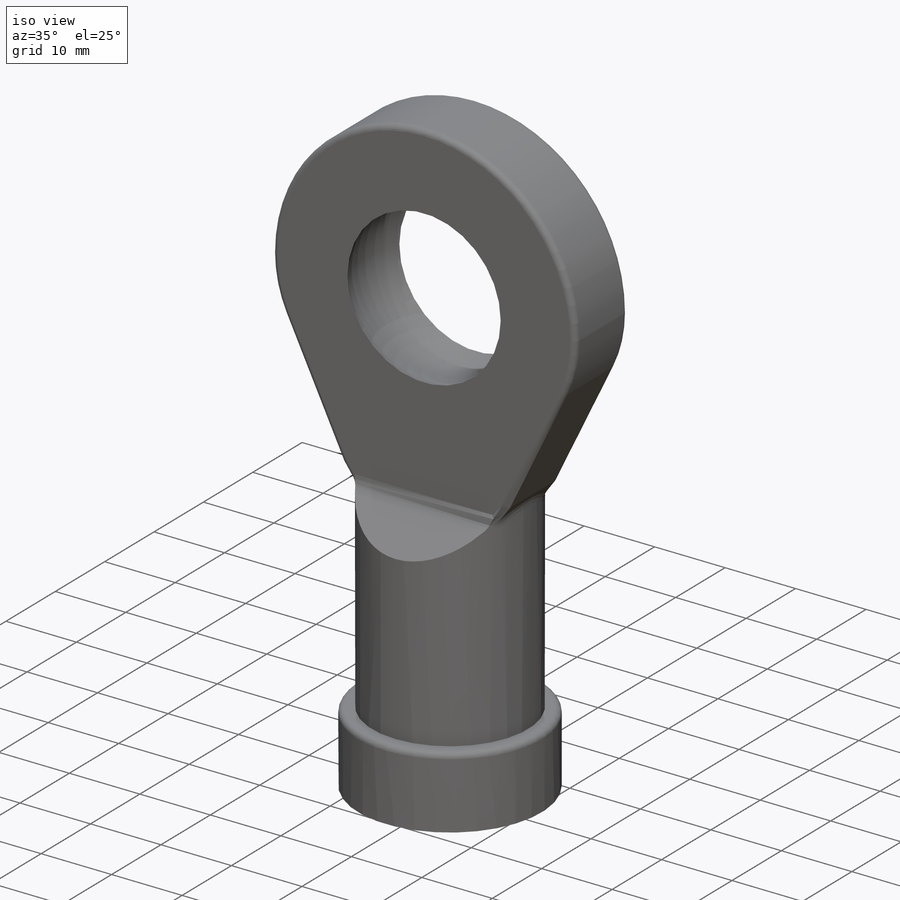
[diagram: iso view]
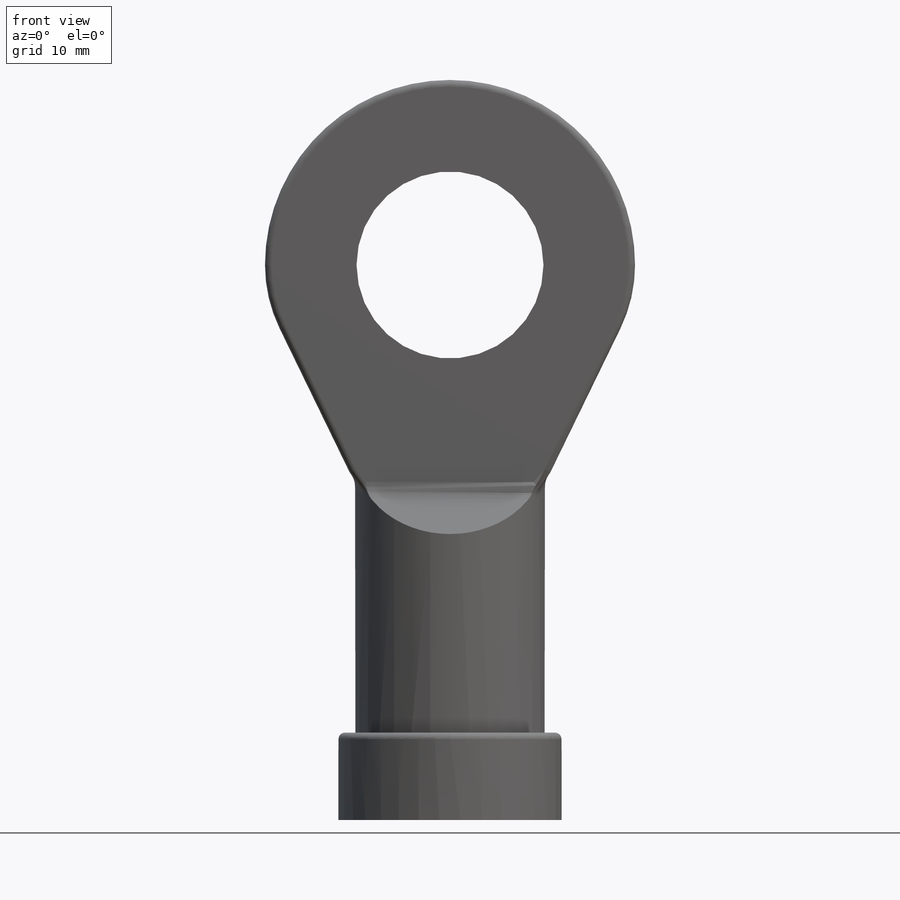
[diagram: front view]
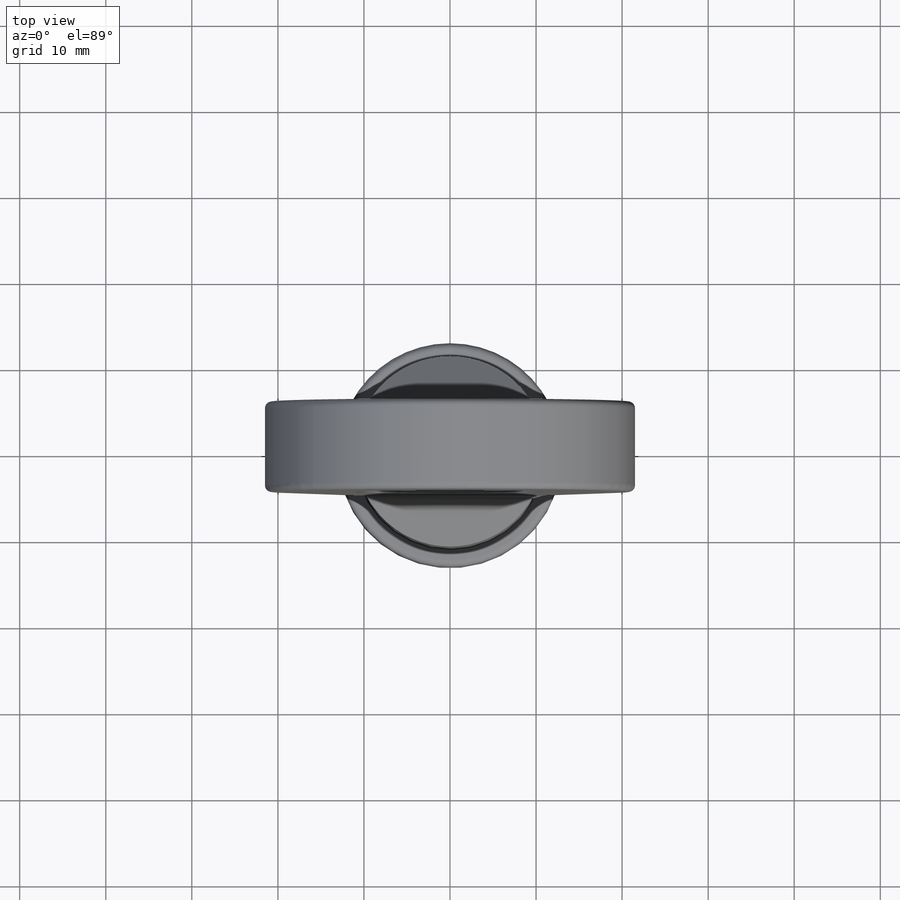
[diagram: top view]
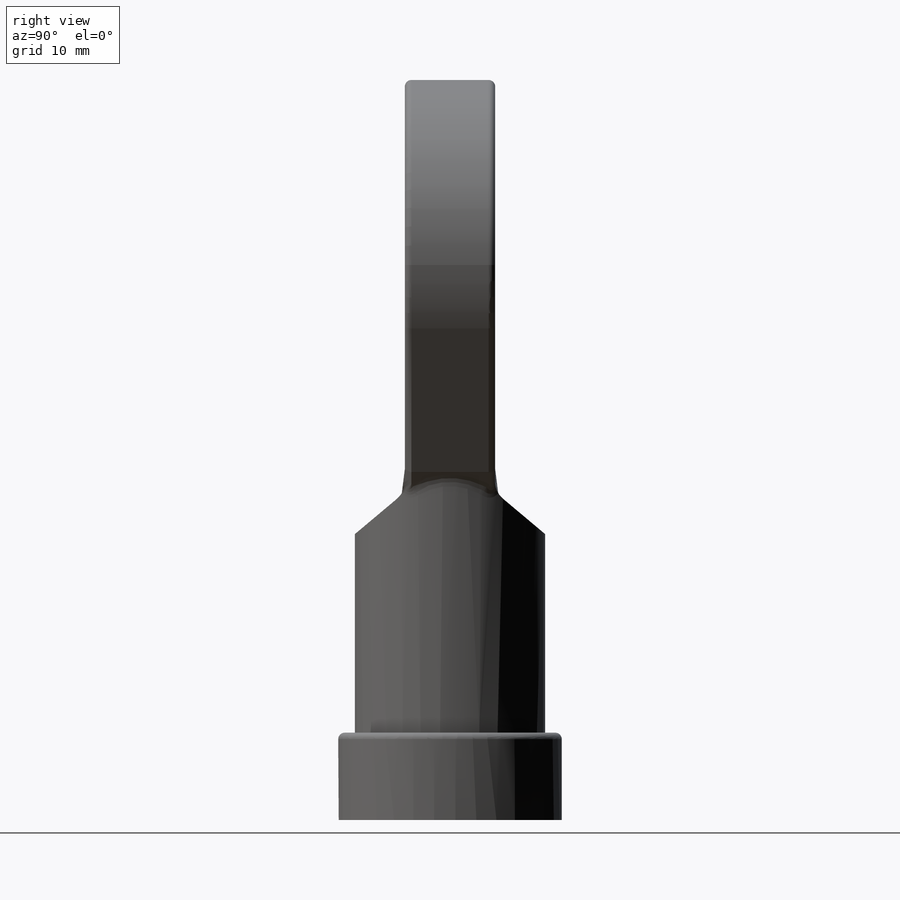
[diagram: right view]
SOLIDWORKS PART (.sldprt)
format: sldprt  version: not decoded by parser v0  size: 373,760 bytes
history: native  units: mm
features: fillet x5, sketch x4, chamfer x2, material x1, revolve x1, extrude x1, cut_revolve x1, cut_extrude x1, mirror x1 (+13 scaffold rows collapsed)
feature tree (30):
  scaffold x13  (default folders/planes/origin — collapsed)
  material  "Material <not specified>"
  sketch  "Sketch1"  dims[c1.D1=~23.040928mm c2.D1=50.0deg c2.D2=11.049mm c2.D3=12.9921mm c2.D4=7.9375mm c2.D5=33.02mm c2.D6=~5.25018mm c2.D7=10.16mm c2.D8=~26.961872mm c3.D5=32.258mm c3.D8=~4.529075mm c3.D9=38.1mm]
  revolve  "Revolve1"  Angle=360deg
  sketch  "Sketch2"  dims[c1.D1=43.0022mm c1.D2=~85.99932mm c1.D3=~64.50076mm c1.D4=22.098mm c1.D5=~24.626594mm c1.D6=~3.466163mm c2.D4=21.082mm]
  extrude  "Boss-Extrude1"  Depth=10.50036mm
  sketch  "Sketch3"  dims[D1=12.065mm]
  cut_revolve  "Cut-Revolve1"  Angle=360deg
  sketch  "Sketch6"  dims[c1.D1=~5.79882mm c2.D1=~140.066036deg c3.D1=~7.562513mm c4.D1=50.0deg c4.D2=~6.916207mm]
  cut_extrude  "Cut-Extrude1"  Depth=2.54mm
  mirror  "Mirror1"
  fillet  "Fillet2"  Radius=2.54mm
  chamfer  "Chamfer1"  Distance=2.54mm Angle=10deg
  chamfer  "Chamfer2"  Distance=2.54mm Angle=10deg
  fillet  "Fillet7"  Radius=0.762mm
  fillet  "Fillet8"  Radius=0.762mm
  fillet  "Fillet9"  Radius=2.286mm
  fillet  "Fillet5"  Radius=0.762mm
decode coverage: 15 of 16 modeling features carry decoded parameters
note: ~ marks probable driven/reference dimensions
note: suppression state not decoded; provenance and decode notes live in map.json
